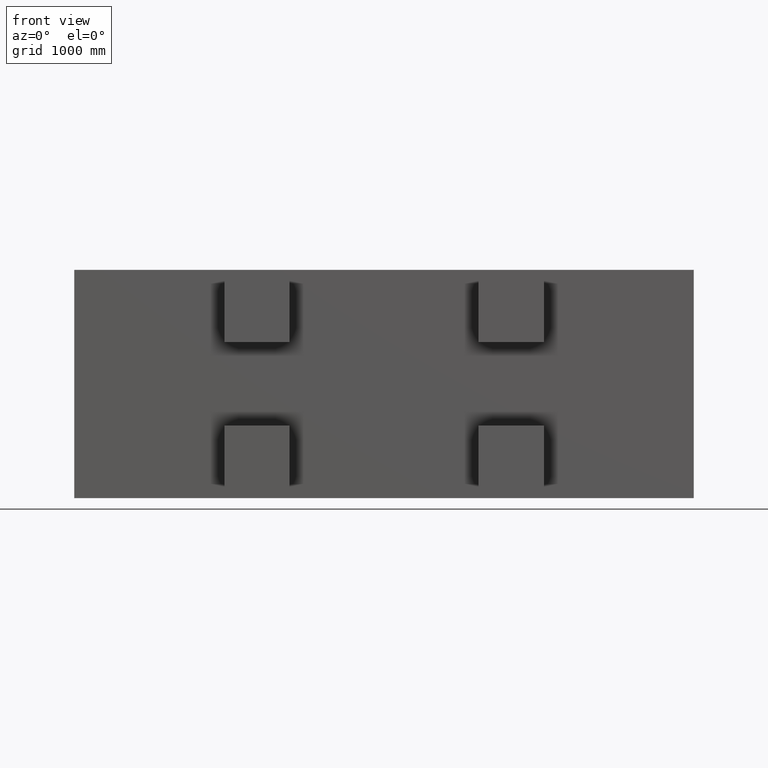
[diagram: clean part render]
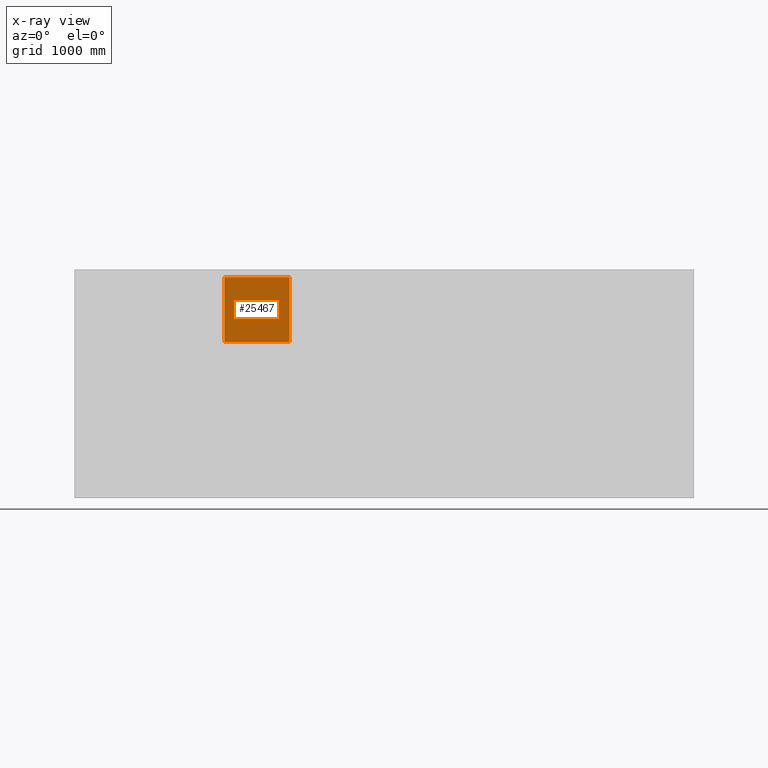
[diagram: x-ray — body ghosted, one internal face saturated and labeled with its STEP entity id]
A machine part, front view, then the same camera in x-ray: the body is ghosted and one INTERNAL B-rep face — a face not visible from any outside direction — is saturated and labeled: STEP entity #25467.
In plain terms, the highlighted planar face has unit normal (0, -1, 0).
Its self-contained STEP definition (entity closure, byte-faithful):
#2043 = PLANE ( 'NONE',  #51427 ) ;
#2058 = FACE_OUTER_BOUND ( 'NONE', #19523, .T. ) ;
#2068 = CARTESIAN_POINT ( 'NONE',  ( 400.0000000000001100, 0.0000000000000000000, -400.0000000000000000 ) ) ;
#2069 = DIRECTION ( 'NONE',  ( 0.0000000000000000000, -1.000000000000000000, 0.0000000000000000000 ) ) ;
#2070 = DIRECTION ( 'NONE',  ( 0.0000000000000000000, -0.0000000000000000000, -1.000000000000000000 ) ) ;
#3759 = VECTOR ( 'NONE', #5310, 1000.000000000000000 ) ;
#3762 = VECTOR ( 'NONE', #5319, 1000.000000000000000 ) ;
#3765 = VECTOR ( 'NONE', #5328, 1000.000000000000000 ) ;
#3767 = VECTOR ( 'NONE', #5334, 1000.000000000000000 ) ;
#5308 = LINE ( 'NONE', #5309, #3759 ) ;
#5309 = CARTESIAN_POINT ( 'NONE',  ( 400.0000000000001100, 0.0000000000000000000, 400.0000000000000000 ) ) ;
#5310 = DIRECTION ( 'NONE',  ( 0.0000000000000000000, 0.0000000000000000000, -1.000000000000000000 ) ) ;
#5317 = LINE ( 'NONE', #5318, #3762 ) ;
#5318 = CARTESIAN_POINT ( 'NONE',  ( -399.9999999999998900, 0.0000000000000000000, -400.0000000000000000 ) ) ;
#5319 = DIRECTION ( 'NONE',  ( -1.000000000000000000, -0.0000000000000000000, -0.0000000000000000000 ) ) ;
#5326 = LINE ( 'NONE', #5327, #3765 ) ;
#5327 = CARTESIAN_POINT ( 'NONE',  ( -399.9999999999998900, 0.0000000000000000000, 400.0000000000000000 ) ) ;
#5328 = DIRECTION ( 'NONE',  ( -0.0000000000000000000, -0.0000000000000000000, 1.000000000000000000 ) ) ;
#5332 = LINE ( 'NONE', #5333, #3767 ) ;
#5333 = CARTESIAN_POINT ( 'NONE',  ( -399.9999999999998900, 0.0000000000000000000, 400.0000000000000000 ) ) ;
#5334 = DIRECTION ( 'NONE',  ( 1.000000000000000000, 0.0000000000000000000, 0.0000000000000000000 ) ) ;
#6295 = CARTESIAN_POINT ( 'NONE',  ( 400.0000000000001100, 0.0000000000000000000, -400.0000000000000000 ) ) ;
#6323 = CARTESIAN_POINT ( 'NONE',  ( -399.9999999999998900, 0.0000000000000000000, 400.0000000000000000 ) ) ;
#6328 = CARTESIAN_POINT ( 'NONE',  ( -399.9999999999998900, 0.0000000000000000000, -400.0000000000000000 ) ) ;
#6330 = CARTESIAN_POINT ( 'NONE',  ( 400.0000000000001100, 0.0000000000000000000, 400.0000000000000000 ) ) ;
#19523 = EDGE_LOOP ( 'NONE', ( #27095, #27096, #27097, #27098 ) ) ;
#25467 = ADVANCED_FACE ( 'NONE', ( #2058 ), #2043, .T. ) ;
#25932 = EDGE_CURVE ( 'NONE', #27724, #27689, #5308, .T. ) ;
#25935 = EDGE_CURVE ( 'NONE', #27689, #27722, #5317, .T. ) ;
#25938 = EDGE_CURVE ( 'NONE', #27722, #27717, #5326, .T. ) ;
#25940 = EDGE_CURVE ( 'NONE', #27717, #27724, #5332, .T. ) ;
#27095 = ORIENTED_EDGE ( 'NONE', *, *, #25932, .F. ) ;
#27096 = ORIENTED_EDGE ( 'NONE', *, *, #25940, .F. ) ;
#27097 = ORIENTED_EDGE ( 'NONE', *, *, #25938, .F. ) ;
#27098 = ORIENTED_EDGE ( 'NONE', *, *, #25935, .F. ) ;
#27689 = VERTEX_POINT ( 'NONE', #6295 ) ;
#27717 = VERTEX_POINT ( 'NONE', #6323 ) ;
#27722 = VERTEX_POINT ( 'NONE', #6328 ) ;
#27724 = VERTEX_POINT ( 'NONE', #6330 ) ;
#51427 = AXIS2_PLACEMENT_3D ( 'NONE', #2068, #2069, #2070 ) ;